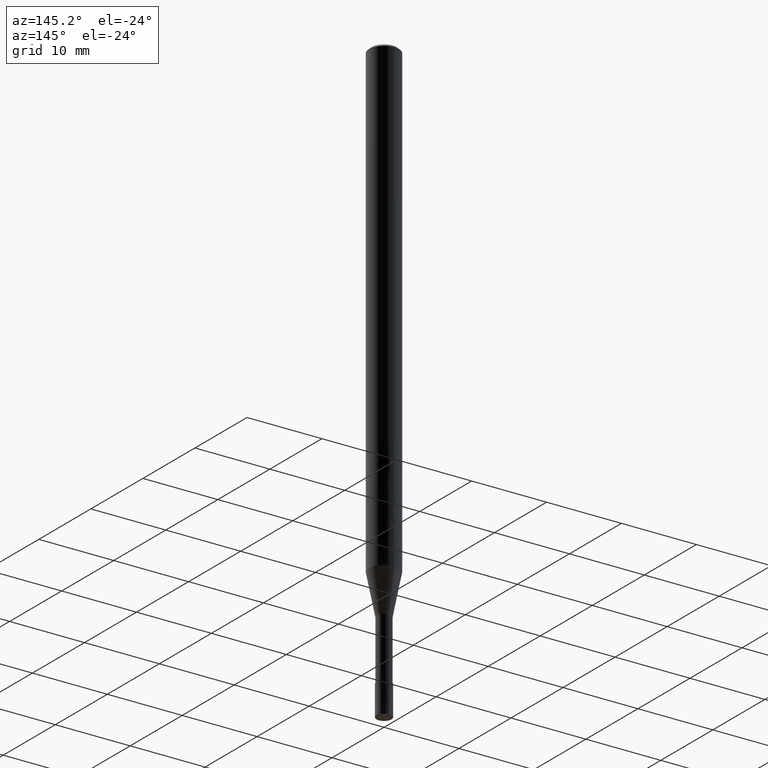
[diagram: clean part render]
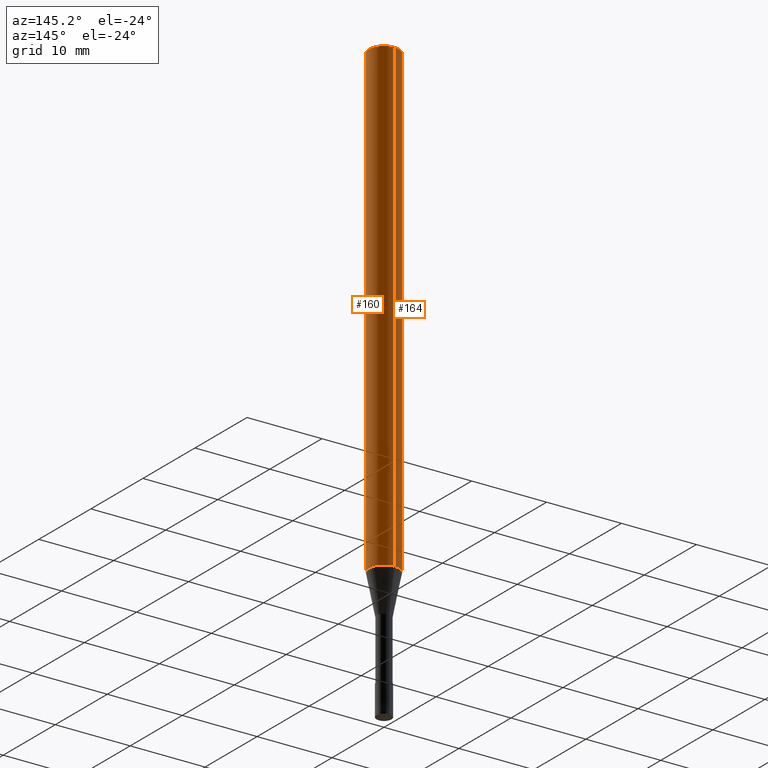
[diagram: same view with one multi-face feature highlighted, each face labeled with its STEP entity id]
A machine part, auxiliary view. The highlighted faces form ONE feature: a constant-radius fillet chain: 2 tangent blend faces with common blend radius 2 mm. The faces share edges in the B-rep.
Their STEP definitions:
[1] entity #160 (Cylinder):
#92=VERTEX_POINT('',#229);
#100=EDGE_CURVE('',#130,#150,#237,.T.);
#110=EDGE_CURVE('',#92,#150,#250,.T.);
#130=VERTEX_POINT('',#271);
#150=VERTEX_POINT('',#296);
#160=ADVANCED_FACE('',(#307),#308,.T.);
#172=EDGE_CURVE('',#130,#180,#321,.T.);
#180=VERTEX_POINT('',#330);
#190=EDGE_CURVE('',#180,#92,#340,.T.);
#229=CARTESIAN_POINT('',(2.44921270764475E-016,-2.0,-62.598));
#237=CIRCLE('',#384,2.0);
#250=LINE('',#401,#402);
#271=CARTESIAN_POINT('',(0.0,2.0,-0.299999999999997));
#296=CARTESIAN_POINT('',(2.44921270764475E-016,-2.0,-0.299999999999997));
#307=FACE_OUTER_BOUND('',#475,.T.);
#308=CYLINDRICAL_SURFACE('',#476,2.0);
#321=LINE('',#492,#493);
#330=CARTESIAN_POINT('',(0.0,2.0,-62.598));
#340=CIRCLE('',#515,2.0);
#384=AXIS2_PLACEMENT_3D('',#549,#550,#551);
#401=CARTESIAN_POINT('',(2.44921270764475E-016,-2.0,-31.449));
#402=VECTOR('',#572,1.0);
#475=EDGE_LOOP('',(#641,#642,#643,#644));
#476=AXIS2_PLACEMENT_3D('',#645,#646,#647);
#492=CARTESIAN_POINT('',(-2.44921270764475E-016,2.0,-31.449));
#493=VECTOR('',#662,1.0);
#515=AXIS2_PLACEMENT_3D('',#679,#680,#681);
#549=CARTESIAN_POINT('',(0.0,0.0,-0.299999999999997));
#550=DIRECTION('',(0.0,0.0,-1.0));
#551=DIRECTION('',(0.0,1.0,0.0));
#572=DIRECTION('',(-0.0,-0.0,1.0));
#641=ORIENTED_EDGE('',*,*,#172,.F.);
#642=ORIENTED_EDGE('',*,*,#100,.T.);
#643=ORIENTED_EDGE('',*,*,#110,.F.);
#644=ORIENTED_EDGE('',*,*,#190,.F.);
#645=CARTESIAN_POINT('',(0.0,0.0,-31.449));
#646=DIRECTION('',(-0.0,-0.0,1.0));
#647=DIRECTION('',(0.0,1.0,0.0));
#662=DIRECTION('',(0.0,0.0,-1.0));
#679=CARTESIAN_POINT('',(0.0,0.0,-62.598));
#680=DIRECTION('',(0.0,0.0,-1.0));
#681=DIRECTION('',(0.0,1.0,0.0));
[2] entity #164 (Cylinder):
#92=VERTEX_POINT('',#229);
#110=EDGE_CURVE('',#92,#150,#250,.T.);
#130=VERTEX_POINT('',#271);
#150=VERTEX_POINT('',#296);
#164=ADVANCED_FACE('',(#312),#313,.T.);
#172=EDGE_CURVE('',#130,#180,#321,.T.);
#174=EDGE_CURVE('',#92,#180,#323,.T.);
#180=VERTEX_POINT('',#330);
#186=EDGE_CURVE('',#150,#130,#336,.T.);
#229=CARTESIAN_POINT('',(2.44921270764475E-016,-2.0,-62.598));
#250=LINE('',#401,#402);
#271=CARTESIAN_POINT('',(0.0,2.0,-0.299999999999997));
#296=CARTESIAN_POINT('',(2.44921270764475E-016,-2.0,-0.299999999999997));
#312=FACE_OUTER_BOUND('',#481,.T.);
#313=CYLINDRICAL_SURFACE('',#482,2.0);
#321=LINE('',#492,#493);
#323=CIRCLE('',#496,2.0);
#330=CARTESIAN_POINT('',(0.0,2.0,-62.598));
#336=CIRCLE('',#510,2.0);
#401=CARTESIAN_POINT('',(2.44921270764475E-016,-2.0,-31.449));
#402=VECTOR('',#572,1.0);
#481=EDGE_LOOP('',(#652,#653,#654,#655));
#482=AXIS2_PLACEMENT_3D('',#656,#657,#658);
#492=CARTESIAN_POINT('',(-2.44921270764475E-016,2.0,-31.449));
#493=VECTOR('',#662,1.0);
#496=AXIS2_PLACEMENT_3D('',#663,#664,#665);
#510=AXIS2_PLACEMENT_3D('',#676,#677,#678);
#572=DIRECTION('',(-0.0,-0.0,1.0));
#652=ORIENTED_EDGE('',*,*,#172,.T.);
#653=ORIENTED_EDGE('',*,*,#174,.F.);
#654=ORIENTED_EDGE('',*,*,#110,.T.);
#655=ORIENTED_EDGE('',*,*,#186,.T.);
#656=CARTESIAN_POINT('',(0.0,0.0,-31.449));
#657=DIRECTION('',(-0.0,-0.0,1.0));
#658=DIRECTION('',(0.0,1.0,0.0));
#662=DIRECTION('',(0.0,0.0,-1.0));
#663=CARTESIAN_POINT('',(0.0,0.0,-62.598));
#664=DIRECTION('',(0.0,0.0,-1.0));
#665=DIRECTION('',(0.0,1.0,0.0));
#676=CARTESIAN_POINT('',(0.0,0.0,-0.299999999999997));
#677=DIRECTION('',(0.0,0.0,-1.0));
#678=DIRECTION('',(0.0,1.0,0.0));